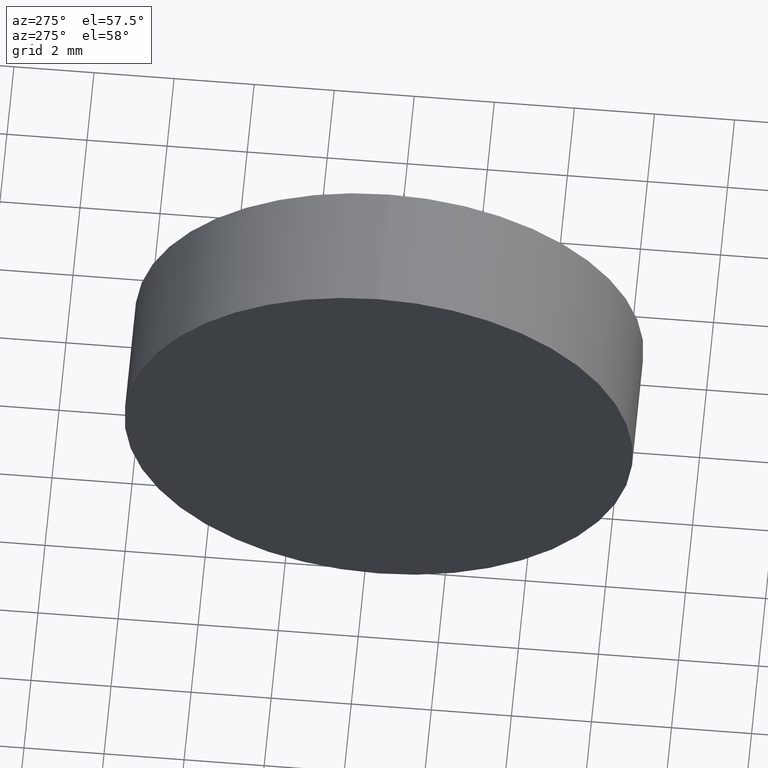
[diagram: clean part render]
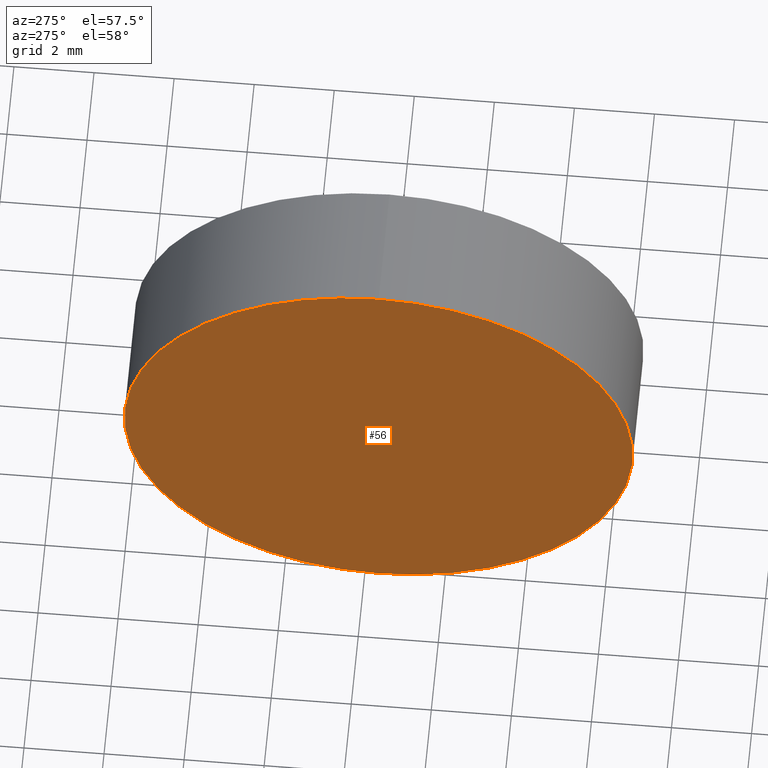
[diagram: same view with one face highlighted and labeled with its STEP entity id]
A machine part, auxiliary view. The second image highlights one B-rep face of the part: STEP entity #56.
In plain terms, the highlighted planar face has unit normal (1, 0, 0).
Its self-contained STEP definition (entity closure, byte-faithful):
#4 = VERTEX_POINT ( 'NONE', #17 ) ;
#9 = FACE_OUTER_BOUND ( 'NONE', #20, .T. ) ;
#16 = CARTESIAN_POINT ( 'NONE',  ( 259.7243528930642900, 83.64317934901542600, 0.0000000000000000000 ) ) ;
#17 = CARTESIAN_POINT ( 'NONE',  ( 259.7243528930642900, 83.64317934901542600, -6.349999999999994300 ) ) ;
#20 = EDGE_LOOP ( 'NONE', ( #120, #99 ) ) ;
#32 = DIRECTION ( 'NONE',  ( -1.000000000000000000, -0.0000000000000000000, -0.0000000000000000000 ) ) ;
#33 = DIRECTION ( 'NONE',  ( 0.0000000000000000000, 0.0000000000000000000, 1.000000000000000000 ) ) ;
#52 = CARTESIAN_POINT ( 'NONE',  ( 259.7243528930642900, 83.64317934901542600, 0.0000000000000000000 ) ) ;
#56 = ADVANCED_FACE ( 'NONE', ( #9 ), #116, .F. ) ;
#58 = CIRCLE ( 'NONE', #97, 6.349999999999994300 ) ;
#62 = CARTESIAN_POINT ( 'NONE',  ( 259.7243528930642900, 83.64317934901542600, 0.0000000000000000000 ) ) ;
#65 = CIRCLE ( 'NONE', #124, 6.349999999999994300 ) ;
#70 = EDGE_CURVE ( 'NONE', #4, #137, #58, .T. ) ;
#73 = DIRECTION ( 'NONE',  ( 1.000000000000000000, 0.0000000000000000000, 0.0000000000000000000 ) ) ;
#77 = DIRECTION ( 'NONE',  ( -1.000000000000000000, -0.0000000000000000000, -0.0000000000000000000 ) ) ;
#83 = EDGE_CURVE ( 'NONE', #137, #4, #65, .T. ) ;
#85 = DIRECTION ( 'NONE',  ( 0.0000000000000000000, 0.0000000000000000000, -1.000000000000000000 ) ) ;
#90 = AXIS2_PLACEMENT_3D ( 'NONE', #16, #73, #85 ) ;
#97 = AXIS2_PLACEMENT_3D ( 'NONE', #62, #32, #33 ) ;
#99 = ORIENTED_EDGE ( 'NONE', *, *, #70, .T. ) ;
#116 = PLANE ( 'NONE',  #90 ) ;
#120 = ORIENTED_EDGE ( 'NONE', *, *, #83, .T. ) ;
#122 = CARTESIAN_POINT ( 'NONE',  ( 259.7243528930642900, 83.64317934901542600, 6.349999999999994300 ) ) ;
#124 = AXIS2_PLACEMENT_3D ( 'NONE', #52, #77, #128 ) ;
#128 = DIRECTION ( 'NONE',  ( 0.0000000000000000000, 0.0000000000000000000, 1.000000000000000000 ) ) ;
#137 = VERTEX_POINT ( 'NONE', #122 ) ;